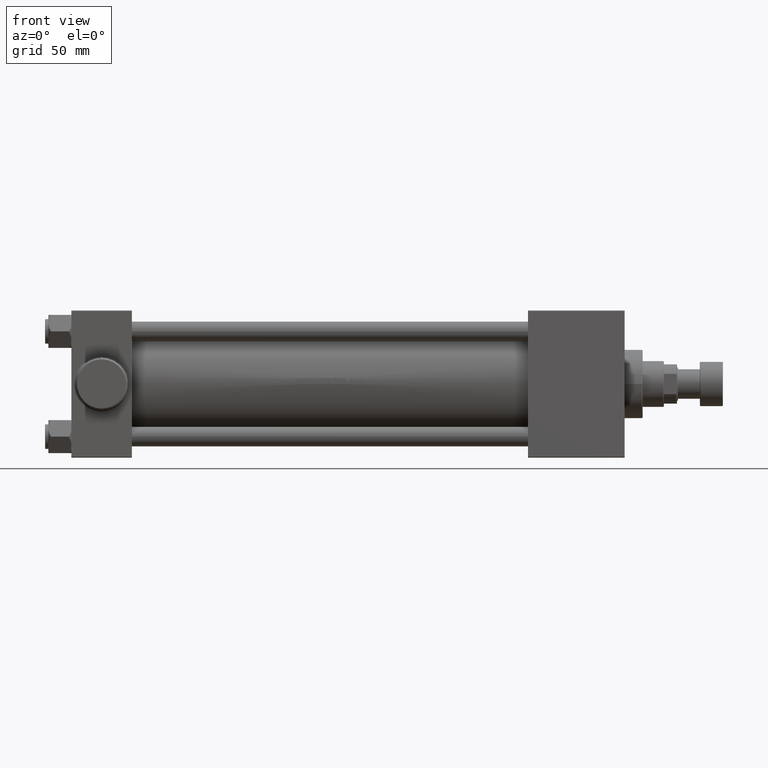
[diagram: clean part render]
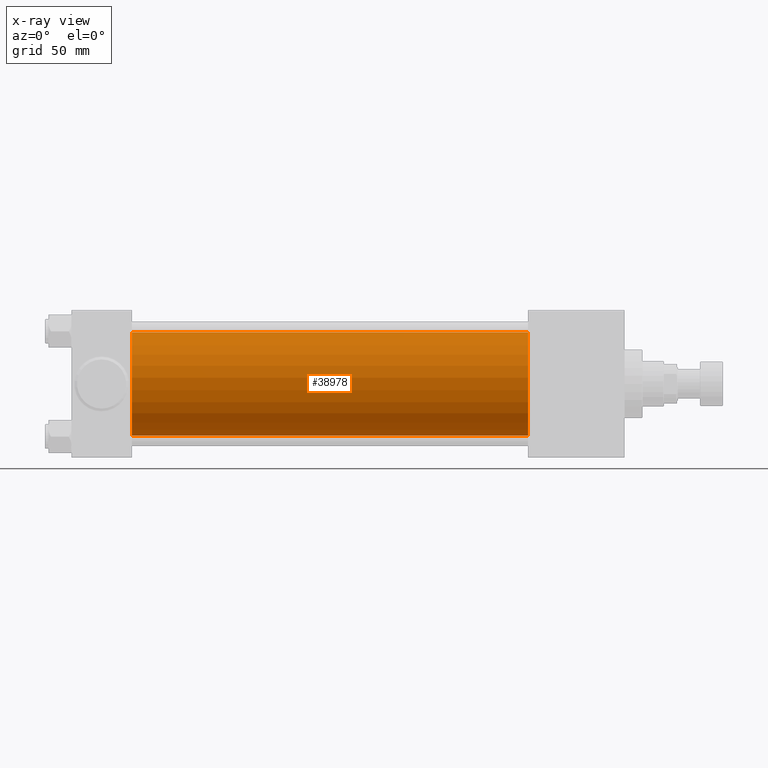
[diagram: x-ray — body ghosted, one internal face saturated and labeled with its STEP entity id]
A machine part, front view, then the same camera in x-ray: the body is ghosted and one INTERNAL B-rep face — a face not visible from any outside direction — is saturated and labeled: STEP entity #38978.
In plain terms, the highlighted cylindrical surface (partial cylindrical patch) has radius 31.5 mm, axis along (-1, -0, -0).
Its self-contained STEP definition (entity closure, byte-faithful):
#658 = VERTEX_POINT ( 'NONE', #29199 ) ;
#667 = DIRECTION ( 'NONE',  ( 0.000000000000000000, 0.000000000000000000, -1.000000000000000000 ) ) ;
#2484 = CARTESIAN_POINT ( 'NONE',  ( 278.9999999999999432, -3.469446951953614189E-15, 31.50000000000000000 ) ) ;
#3241 = VERTEX_POINT ( 'NONE', #4404 ) ;
#3253 = FACE_OUTER_BOUND ( 'NONE', #35266, .T. ) ;
#4404 = CARTESIAN_POINT ( 'NONE',  ( 37.00000000000000000, -3.469446951953614189E-15, 31.50000000000000000 ) ) ;
#4897 = CARTESIAN_POINT ( 'NONE',  ( 278.9999999999999432, 3.881904653605483521E-16, -31.50000000000000000 ) ) ;
#5174 = ORIENTED_EDGE ( 'NONE', *, *, #24408, .T. ) ;
#5533 = LINE ( 'NONE', #19959, #13358 ) ;
#5725 = AXIS2_PLACEMENT_3D ( 'NONE', #11063, #36121, #25009 ) ;
#5835 = DIRECTION ( 'NONE',  ( 1.000000000000000000, 0.000000000000000000, 0.000000000000000000 ) ) ;
#7697 = VECTOR ( 'NONE', #36703, 1000.000000000000000 ) ;
#9635 = ORIENTED_EDGE ( 'NONE', *, *, #29976, .T. ) ;
#11063 = CARTESIAN_POINT ( 'NONE',  ( 278.9999999999999432, -3.469446951953614189E-15, 0.000000000000000000 ) ) ;
#13358 = VECTOR ( 'NONE', #46642, 1000.000000000000000 ) ;
#16185 = CIRCLE ( 'NONE', #36521, 31.50000000000000000 ) ;
#17138 = VERTEX_POINT ( 'NONE', #2484 ) ;
#19169 = CIRCLE ( 'NONE', #29742, 31.50000000000000000 ) ;
#19600 = ORIENTED_EDGE ( 'NONE', *, *, #29215, .F. ) ;
#19959 = CARTESIAN_POINT ( 'NONE',  ( 278.9999999999999432, -3.469446951953614189E-15, 31.50000000000000000 ) ) ;
#22278 = CARTESIAN_POINT ( 'NONE',  ( 278.9999999999999432, 3.881904653605483521E-16, -31.50000000000000000 ) ) ;
#22513 = LINE ( 'NONE', #22278, #7697 ) ;
#24408 = EDGE_CURVE ( 'NONE', #29113, #658, #22513, .T. ) ;
#25009 = DIRECTION ( 'NONE',  ( 0.000000000000000000, 0.000000000000000000, 1.000000000000000000 ) ) ;
#29113 = VERTEX_POINT ( 'NONE', #4897 ) ;
#29199 = CARTESIAN_POINT ( 'NONE',  ( 37.00000000000000000, 3.881904653605483521E-16, -31.50000000000000000 ) ) ;
#29215 = EDGE_CURVE ( 'NONE', #3241, #658, #19169, .T. ) ;
#29263 = ORIENTED_EDGE ( 'NONE', *, *, #40434, .F. ) ;
#29279 = CARTESIAN_POINT ( 'NONE',  ( 278.9999999999999432, -3.469446951953614189E-15, 0.000000000000000000 ) ) ;
#29742 = AXIS2_PLACEMENT_3D ( 'NONE', #41541, #5835, #31150 ) ;
#29976 = EDGE_CURVE ( 'NONE', #17138, #29113, #16185, .T. ) ;
#30210 = DIRECTION ( 'NONE',  ( 1.000000000000000000, 0.000000000000000000, 0.000000000000000000 ) ) ;
#31150 = DIRECTION ( 'NONE',  ( 0.000000000000000000, 0.000000000000000000, -1.000000000000000000 ) ) ;
#32118 = CYLINDRICAL_SURFACE ( 'NONE', #5725, 31.50000000000000000 ) ;
#35266 = EDGE_LOOP ( 'NONE', ( #9635, #5174, #19600, #29263 ) ) ;
#36121 = DIRECTION ( 'NONE',  ( -1.000000000000000000, -0.000000000000000000, -0.000000000000000000 ) ) ;
#36521 = AXIS2_PLACEMENT_3D ( 'NONE', #29279, #30210, #667 ) ;
#36703 = DIRECTION ( 'NONE',  ( -1.000000000000000000, -0.000000000000000000, -0.000000000000000000 ) ) ;
#38978 = ADVANCED_FACE ( 'NONE', ( #3253 ), #32118, .F. ) ;
#40434 = EDGE_CURVE ( 'NONE', #17138, #3241, #5533, .T. ) ;
#41541 = CARTESIAN_POINT ( 'NONE',  ( 37.00000000000000000, -3.469446951953614189E-15, 0.000000000000000000 ) ) ;
#46642 = DIRECTION ( 'NONE',  ( -1.000000000000000000, -0.000000000000000000, -0.000000000000000000 ) ) ;